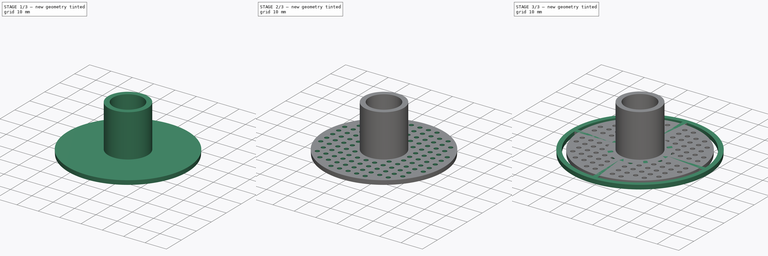
[diagram: build sequence overview — one tinted view per stage of 3, left to right]
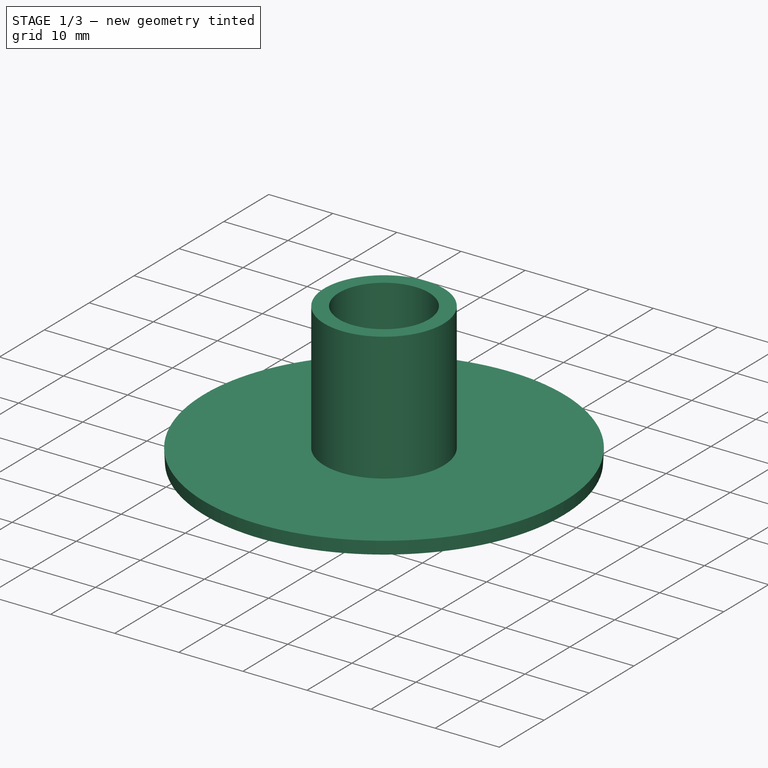
[diagram: stage 1 of 3 — iso view after this stage's code; geometry added in this stage tinted green]
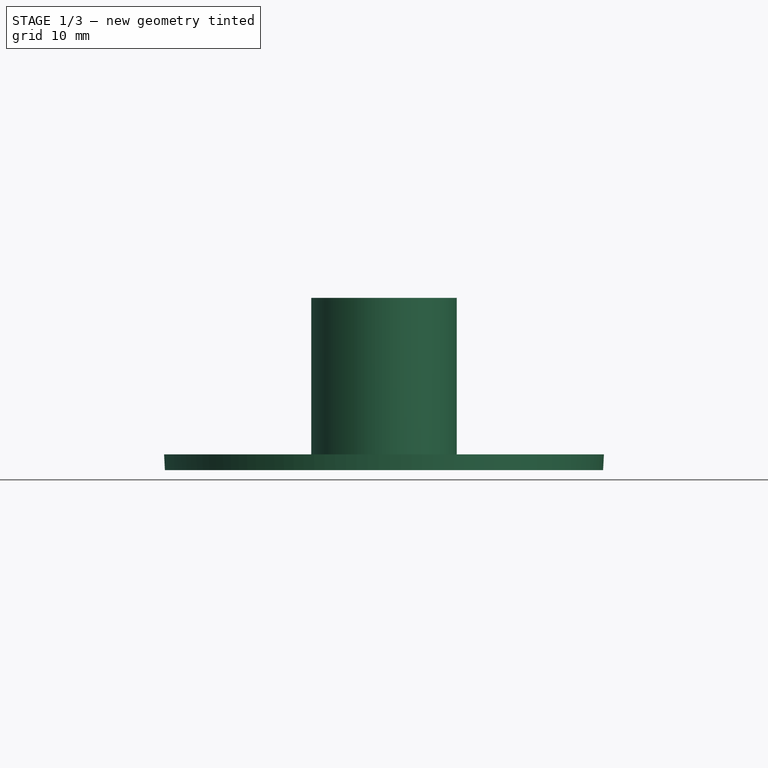
[diagram: stage 1 of 3 — front view after this stage's code; geometry added in this stage tinted green]
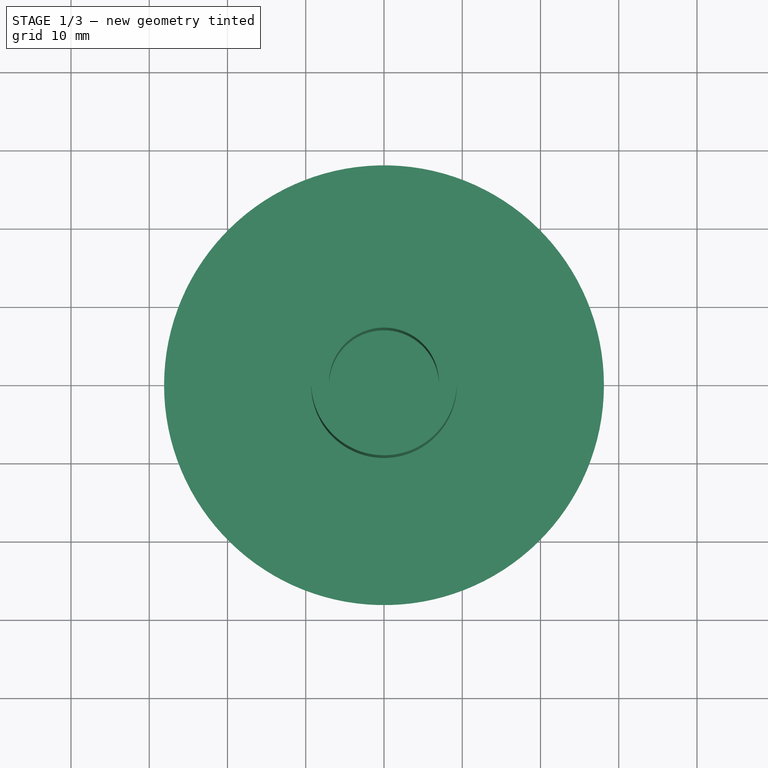
[diagram: stage 1 of 3 — top view after this stage's code; geometry added in this stage tinted green]
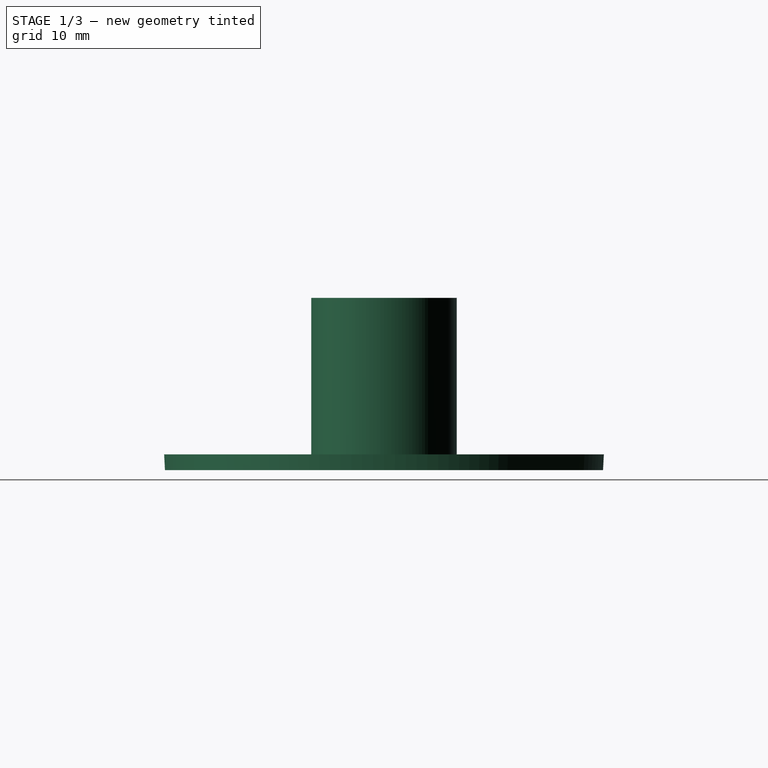
[diagram: stage 1 of 3 — right view after this stage's code; geometry added in this stage tinted green]
FCSTD DOCUMENT  (FreeCAD 1.0R)
Label: morozoff-bottom-filter_type-a
License: All rights reserved
LicenseURL: https://en.wikipedia.org/wiki/All_rights_reserved
objects: Sketcher::SketchObject×8, PartDesign::Pocket×5, PartDesign::Pad×3, PartDesign::Body×2, Spreadsheet::Sheet×1
note: 42 computed .brp shape members not serialized (recipe doc carries the construction recipe); baked Part::Feature solids carry a one-line shape summary decoded from their .brp

FEATURE [Spreadsheet::Sheet] Spreadsheet
  cells = A1='名前; B1='値; A2='thin; B2(thin)=2; A3='sunoko_phi; B3(sunoko_phi)=56; A4='pipe_phi; B4(pipe_phi)=18.6; A5='pipe_len; B5(pipe_len)=20; A6='pipe_phi_soto; B6(pipe_phi_soto)=21; A7='pipe_osae; B7(pipe_osae)=63.5; A8='pipe_osae_frame; B8(pipe_osae_frame)=2; A9='hole; B9(hole)=2
FEATURE [Sketcher::SketchObject] Sketch
  ArcFitTolerance = 1e-06
  AttachmentSupport = -> [XY_Plane]
  FullyConstrained = true
  MakeInternals = false
  MapMode = 5
  expr: Constraints[1] = Spreadsheet.sunoko_phi
  sketch-geometry (1):
    g0: Circle CenterX=0 CenterY=0 CenterZ=0 NormalX=0 NormalY=0 NormalZ=1 AngleXU=0 Radius=28
  constraints (2):
    c: Coincident(g0,g-1)
    c: Diameter(g0) = 56
FEATURE [PartDesign::Pad] Pad
  Direction = (0,0,1)
  Length = 2
  Length2 = 10
  Profile = -> Sketch
  ReferenceAxis = -> Sketch [N_Axis]
  Refine = true
  Suppressed = false
  TaperAngle = 3
  Type = 0
  expr: Length = Spreadsheet.thin
FEATURE [Sketcher::SketchObject] Sketch001
  ArcFitTolerance = 1e-06
  AttachmentSupport = -> [Pad]
  FullyConstrained = true
  MakeInternals = false
  MapMode = 5
  Placement = pos=(0,0,2) rot=(0,0,1;0rad)
  expr: Constraints[1] = Spreadsheet.pipe_phi
  sketch-geometry (1):
    g0: Circle CenterX=0 CenterY=0 CenterZ=0 NormalX=0 NormalY=0 NormalZ=1 AngleXU=0 Radius=9.3
  constraints (2):
    c: Coincident(g0,g-1)
    c: Diameter(g0) = 18.6
FEATURE [PartDesign::Pad] Pad001
  BaseFeature = -> Pad
  Direction = (0,0,1)
  Length = 20
  Length2 = 10
  Profile = -> Sketch001
  ReferenceAxis = -> Sketch001 [N_Axis]
  Refine = true
  Suppressed = false
  Type = 0
  expr: Length = Spreadsheet.pipe_len
FEATURE [Sketcher::SketchObject] Sketch002
  ArcFitTolerance = 1e-06
  AttachmentSupport = -> [Pad001]
  FullyConstrained = true
  MakeInternals = false
  MapMode = 5
  Placement = pos=(0,0,22) rot=(0,0,1;0rad)
  expr: Constraints[1] = Spreadsheet.thin
  sketch-geometry (1):
    g0: Circle CenterX=0 CenterY=0 CenterZ=0 NormalX=0 NormalY=0 NormalZ=1 AngleXU=0 Radius=7.02073
  constraints (2):
    c: Coincident(g0,g-1)
    c: Distance(g0,g-3) = 2
FEATURE [PartDesign::Pocket] Pocket
  BaseFeature = -> Pad001
  Direction = (0,0,-1)
  Length = 20
  Length2 = 5
  Profile = -> Sketch002
  ReferenceAxis = -> Sketch002 [N_Axis]
  Refine = true
  Suppressed = false
  Type = 0
  expr: Length = Spreadsheet.pipe_len
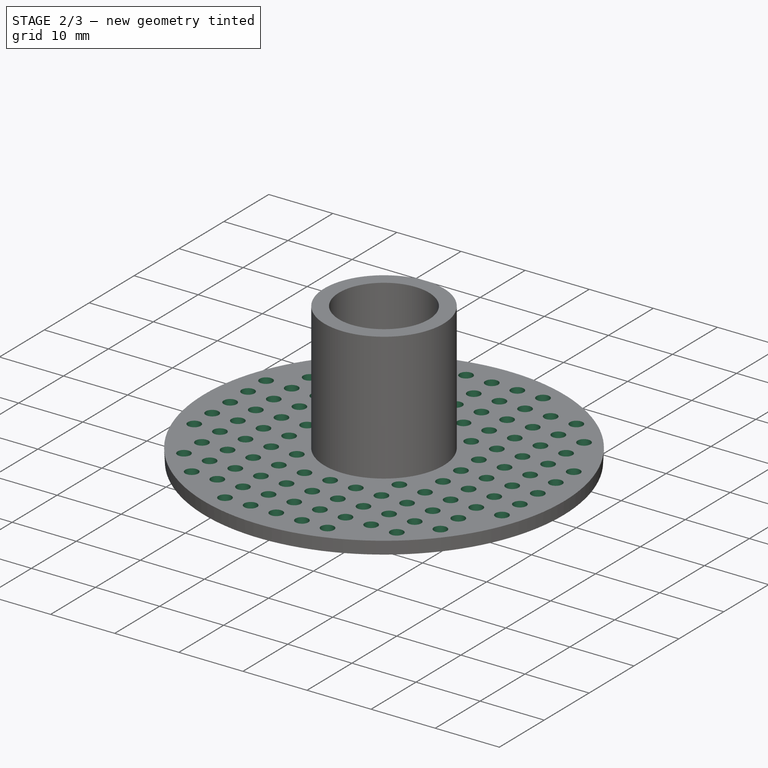
[diagram: stage 2 of 3 — iso view after this stage's code; geometry added in this stage tinted green]
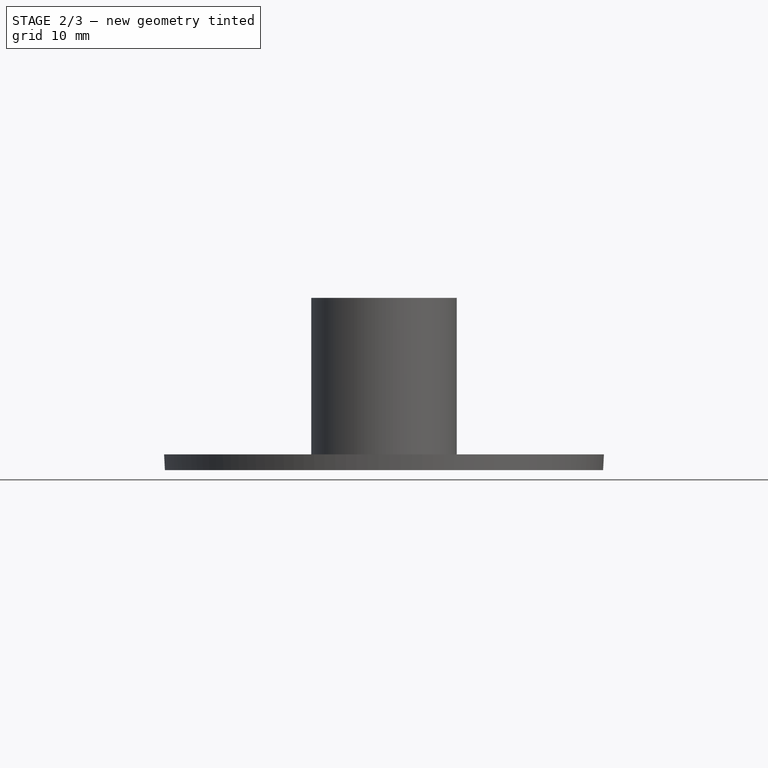
[diagram: stage 2 of 3 — front view after this stage's code; geometry added in this stage tinted green]
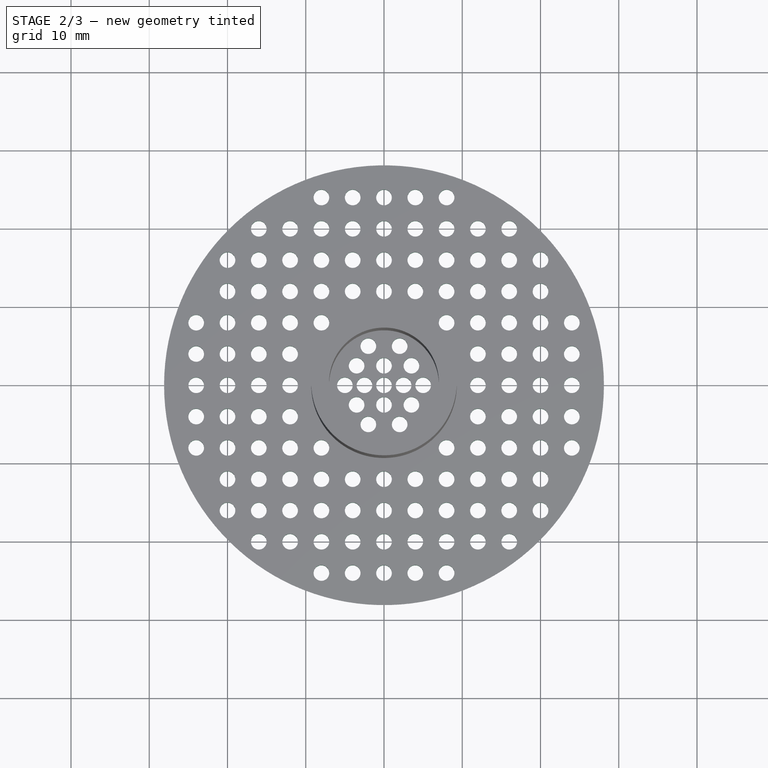
[diagram: stage 2 of 3 — top view after this stage's code; geometry added in this stage tinted green]
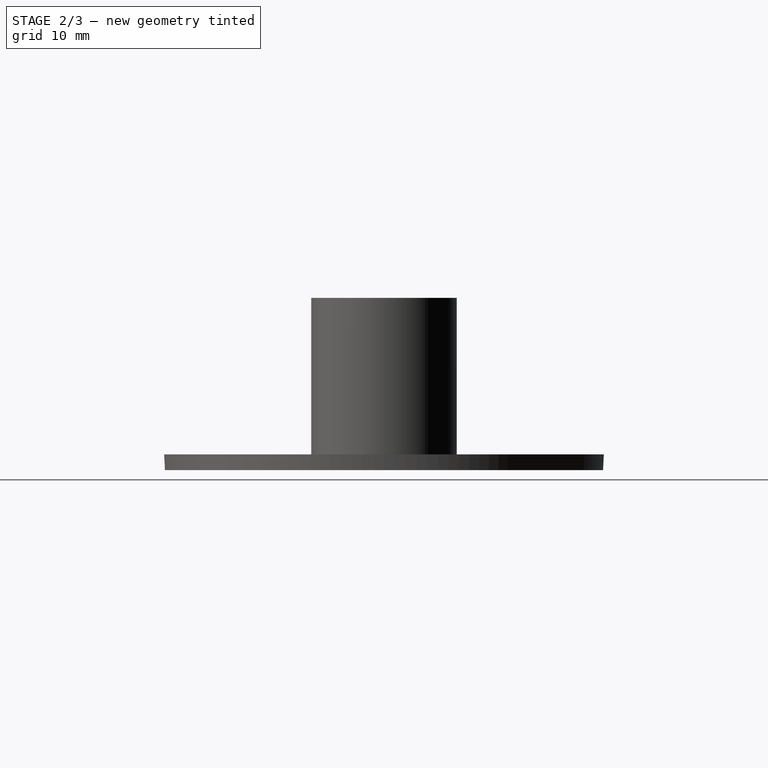
[diagram: stage 2 of 3 — right view after this stage's code; geometry added in this stage tinted green]
FEATURE [PartDesign::Body] Body001  label="Pipe_osae"
  AllowCompound = false
  Group = -> [Sketch003,Pad002,Sketch004,Pocket001,Sketch005,Pocket002]
  Origin = -> Origin001
  Tip = -> Pocket002
FEATURE [Sketcher::SketchObject] Sketch006
  ArcFitTolerance = 1e-06
  AttachmentSupport = -> [Pocket]
  FullyConstrained = true
  MakeInternals = false
  MapMode = 5
  Placement = pos=(0,0,2) rot=(0,0,1;0rad)
  sketch-geometry (140):
    g0: LineSegment [constr] StartX=20 StartY=40 StartZ=0 EndX=20 EndY=-40 EndZ=0
    g1: LineSegment [constr] StartX=12 StartY=40 StartZ=0 EndX=12 EndY=-40 EndZ=0
    g2: LineSegment [constr] StartX=16 StartY=40 StartZ=0 EndX=16 EndY=-40 EndZ=0
    g3: LineSegment [constr] StartX=-16 StartY=40 StartZ=0 EndX=-16 EndY=-40 EndZ=0
    g4: LineSegment [constr] StartX=24 StartY=40 StartZ=0 EndX=24 EndY=-40 EndZ=0
    g5: LineSegment [constr] StartX=-8 StartY=40 StartZ=0 EndX=-8 EndY=-40 EndZ=0
    g6: LineSegment [constr] StartX=-4 StartY=40 StartZ=0 EndX=-4 EndY=-40 EndZ=0
    g7: LineSegment [constr] StartX=-12 StartY=40 StartZ=0 EndX=-12 EndY=-40 EndZ=0
    g8: LineSegment [constr] StartX=-20 StartY=40 StartZ=0 EndX=-20 EndY=-40 EndZ=0
    g9: LineSegment [constr] StartX=-24 StartY=40 StartZ=0 EndX=-24 EndY=-40 EndZ=0
    g10: LineSegment [constr] StartX=4 StartY=40 StartZ=0 EndX=4 EndY=-40 EndZ=0
    g11: LineSegment [constr] StartX=8 StartY=40 StartZ=0 EndX=8 EndY=-40 EndZ=0
    g12: LineSegment [constr] StartX=-40 StartY=24 StartZ=0 EndX=40 EndY=24 EndZ=0
    g13: LineSegment [constr] StartX=-40 StartY=20 StartZ=0 EndX=40 EndY=20 EndZ=0
    g14: LineSegment [constr] StartX=-40 StartY=16 StartZ=0 EndX=40 EndY=16 EndZ=0
    g15: LineSegment [constr] StartX=-40 StartY=12 StartZ=0 EndX=40 EndY=12 EndZ=0
    g16: LineSegment [constr] StartX=-40 StartY=8 StartZ=0 EndX=40 EndY=8 EndZ=0
    g17: LineSegment [constr] StartX=-40 StartY=4 StartZ=0 EndX=40 EndY=4 EndZ=0
    g18: LineSegment [constr] StartX=-40 StartY=-8 StartZ=0 EndX=40 EndY=-8 EndZ=0
    g19: LineSegment [constr] StartX=-40 StartY=-12 StartZ=0 EndX=40 EndY=-12 EndZ=0
    g20: LineSegment [constr] StartX=-40 StartY=-16 StartZ=0 EndX=40 EndY=-16 EndZ=0
    g21: LineSegment [constr] StartX=-40 StartY=-20 StartZ=0 EndX=40 EndY=-20 EndZ=0
    g22: LineSegment [constr] StartX=-40 StartY=-24 StartZ=0 EndX=40 EndY=-24 EndZ=0
    g23: LineSegment [constr] StartX=-40 StartY=-4 StartZ=0 EndX=40 EndY=-4 EndZ=0
    g24: Circle CenterX=0 CenterY=-24 CenterZ=0 NormalX=0 NormalY=0 NormalZ=1 AngleXU=0 Radius=1
    g25: Circle CenterX=4 CenterY=-24 CenterZ=0 NormalX=0 NormalY=0 NormalZ=1 AngleXU=0 Radius=1
    g26: Circle CenterX=-4 CenterY=-24 CenterZ=0 NormalX=0 NormalY=0 NormalZ=1 AngleXU=0 Radius=1
    g27: Circle CenterX=-8 CenterY=-24 CenterZ=0 NormalX=0 NormalY=0 NormalZ=1 AngleXU=0 Radius=1
    g28: Circle CenterX=8 CenterY=-24 CenterZ=0 NormalX=0 NormalY=0 NormalZ=1 AngleXU=0 Radius=1
    g29: Circle CenterX=-16 CenterY=-20 CenterZ=0 NormalX=0 NormalY=0 NormalZ=1 AngleXU=0 Radius=1
    g30: Circle CenterX=-12 CenterY=-20 CenterZ=0 NormalX=0 NormalY=0 NormalZ=1 AngleXU=0 Radius=1
    g31: Circle CenterX=-8 CenterY=-20 CenterZ=0 NormalX=0 NormalY=0 NormalZ=1 AngleXU=0 Radius=1
    g32: Circle CenterX=-4 CenterY=-20 CenterZ=0 NormalX=0 NormalY=0 NormalZ=1 AngleXU=0 Radius=1
    g33: Circle CenterX=0 CenterY=-20 CenterZ=0 NormalX=0 NormalY=0 NormalZ=1 AngleXU=0 Radius=1
    g34: Circle CenterX=4 CenterY=-20 CenterZ=0 NormalX=0 NormalY=0 NormalZ=1 AngleXU=0 Radius=1
    g35: Circle CenterX=8 CenterY=-20 CenterZ=0 NormalX=0 NormalY=0 NormalZ=1 AngleXU=0 Radius=1
    g36: Circle CenterX=12 CenterY=-20 CenterZ=0 NormalX=0 NormalY=0 NormalZ=1 AngleXU=0 Radius=1
    g37: Circle CenterX=16 CenterY=-20 CenterZ=0 NormalX=0 NormalY=0 NormalZ=1 AngleXU=0 Radius=1
    g38: Circle CenterX=-20 CenterY=-16 CenterZ=0 NormalX=0 NormalY=0 NormalZ=1 AngleXU=0 Radius=1
    g39: Circle CenterX=-16 CenterY=-16 CenterZ=0 NormalX=0 NormalY=0 NormalZ=1 AngleXU=0 Radius=1
    g40: Circle CenterX=-12 CenterY=-16 CenterZ=0 NormalX=0 NormalY=0 NormalZ=1 AngleXU=0 Radius=1
    g41: Circle CenterX=-8 CenterY=-16 CenterZ=0 NormalX=0 NormalY=0 NormalZ=1 AngleXU=0 Radius=1
    g42: Circle CenterX=-4 CenterY=-16 CenterZ=0 NormalX=0 NormalY=0 NormalZ=1 AngleXU=0 Radius=1
    g43: Circle CenterX=0 CenterY=-16 CenterZ=0 NormalX=0 NormalY=0 NormalZ=1 AngleXU=0 Radius=1
    g44: Circle CenterX=4 CenterY=-16 CenterZ=0 NormalX=0 NormalY=0 NormalZ=1 AngleXU=0 Radius=1
    g45: Circle CenterX=8 CenterY=-16 CenterZ=0 NormalX=0 NormalY=0 NormalZ=1 AngleXU=0 Radius=1
    g46: Circle CenterX=12 CenterY=-16 CenterZ=0 NormalX=0 NormalY=0 NormalZ=1 AngleXU=0 Radius=1
    g47: Circle CenterX=16 CenterY=-16 CenterZ=0 NormalX=0 NormalY=0 NormalZ=1 AngleXU=0 Radius=1
    g48: Circle CenterX=20 CenterY=-16 CenterZ=0 NormalX=0 NormalY=0 NormalZ=1 AngleXU=0 Radius=1
    g49: Circle CenterX=-20 CenterY=-12 CenterZ=0 NormalX=0 NormalY=0 NormalZ=1 AngleXU=0 Radius=1
    g50: Circle CenterX=-16 CenterY=-12 CenterZ=0 NormalX=0 NormalY=0 NormalZ=1 AngleXU=0 Radius=1
    g51: Circle CenterX=-12 CenterY=-12 CenterZ=0 NormalX=0 NormalY=0 NormalZ=1 AngleXU=0 Radius=1
    g52: Circle CenterX=-8 CenterY=-12 CenterZ=0 NormalX=0 NormalY=0 NormalZ=1 AngleXU=0 Radius=1
    g53: Circle CenterX=-4 CenterY=-12 CenterZ=0 NormalX=0 NormalY=0 NormalZ=1 AngleXU=0 Radius=1
    g54: Circle CenterX=0 CenterY=-12 CenterZ=0 NormalX=0 NormalY=0 NormalZ=1 AngleXU=0 Radius=1
    g55: Circle CenterX=4 CenterY=-12 CenterZ=0 NormalX=0 NormalY=0 NormalZ=1 AngleXU=0 Radius=1
    g56: Circle CenterX=8 CenterY=-12 CenterZ=0 NormalX=0 NormalY=0 NormalZ=1 AngleXU=0 Radius=1
    g57: Circle CenterX=12 CenterY=-12 CenterZ=0 NormalX=0 NormalY=0 NormalZ=1 AngleXU=0 Radius=1
    g58: Circle CenterX=16 CenterY=-12 CenterZ=0 NormalX=0 NormalY=0 NormalZ=1 AngleXU=0 Radius=1
    g59: Circle CenterX=20 CenterY=-12 CenterZ=0 NormalX=0 NormalY=0 NormalZ=1 AngleXU=0 Radius=1
    g60: Circle CenterX=-24 CenterY=-8 CenterZ=0 NormalX=0 NormalY=0 NormalZ=1 AngleXU=0 Radius=1
    g61: Circle CenterX=-20 CenterY=-8 CenterZ=0 NormalX=0 NormalY=0 NormalZ=1 AngleXU=0 Radius=1
    g62: Circle CenterX=-16 CenterY=-8 CenterZ=0 NormalX=0 NormalY=0 NormalZ=1 AngleXU=0 Radius=1
    g63: Circle CenterX=-12 CenterY=-8 CenterZ=0 NormalX=0 NormalY=0 NormalZ=1 AngleXU=0 Radius=1
    g64: Circle CenterX=-8 CenterY=-8 CenterZ=0 NormalX=0 NormalY=0 NormalZ=1 AngleXU=0 Radius=1
    g65: Circle CenterX=8 CenterY=-8 CenterZ=0 NormalX=0 NormalY=0 NormalZ=1 AngleXU=0 Radius=1
    g66: Circle CenterX=12 CenterY=-8 CenterZ=0 NormalX=0 NormalY=0 NormalZ=1 AngleXU=0 Radius=1
    g67: Circle CenterX=16 CenterY=-8 CenterZ=0 NormalX=0 NormalY=0 NormalZ=1 AngleXU=0 Radius=1
    g68: Circle CenterX=20 CenterY=-8 CenterZ=0 NormalX=0 NormalY=0 NormalZ=1 AngleXU=0 Radius=1
    g69: Circle CenterX=24 CenterY=-8 CenterZ=0 NormalX=0 NormalY=0 NormalZ=1 AngleXU=0 Radius=1
    g70: Circle CenterX=-24 CenterY=-4 CenterZ=0 NormalX=0 NormalY=0 NormalZ=1 AngleXU=0 Radius=1
    g71: Circle CenterX=-20 CenterY=-4 CenterZ=0 NormalX=0 NormalY=0 NormalZ=1 AngleXU=0 Radius=1
    g72: Circle CenterX=-16 CenterY=-4 CenterZ=0 NormalX=0 NormalY=0 NormalZ=1 AngleXU=0 Radius=1
    g73: Circle CenterX=-12 CenterY=-4 CenterZ=0 NormalX=0 NormalY=0 NormalZ=1 AngleXU=0 Radius=1
    g74: Circle CenterX=12 CenterY=-4 CenterZ=0 NormalX=0 NormalY=0 NormalZ=1 AngleXU=0 Radius=1
    g75: Circle CenterX=16 CenterY=-4 CenterZ=0 NormalX=0 NormalY=0 NormalZ=1 AngleXU=0 Radius=1
    g76: Circle CenterX=20 CenterY=-4 CenterZ=0 NormalX=0 NormalY=0 NormalZ=1 AngleXU=0 Radius=1
    g77: Circle CenterX=24 CenterY=-4 CenterZ=0 NormalX=0 NormalY=0 NormalZ=1 AngleXU=0 Radius=1
    g78: Circle CenterX=-24 CenterY=0 CenterZ=0 NormalX=0 NormalY=0 NormalZ=1 AngleXU=0 Radius=1
    g79: Circle CenterX=-20 CenterY=0 CenterZ=0 NormalX=0 NormalY=0 NormalZ=1 AngleXU=0 Radius=1
    g80: Circle CenterX=-16 CenterY=0 CenterZ=0 NormalX=0 NormalY=0 NormalZ=1 AngleXU=0 Radius=1
    g81: Circle CenterX=-12 CenterY=0 CenterZ=0 NormalX=0 NormalY=0 NormalZ=1 AngleXU=0 Radius=1
    g82: Circle CenterX=12 CenterY=0 CenterZ=0 NormalX=0 NormalY=0 NormalZ=1 AngleXU=0 Radius=1
    g83: Circle CenterX=16 CenterY=0 CenterZ=0 NormalX=0 NormalY=0 NormalZ=1 AngleXU=0 Radius=1
    g84: Circle CenterX=20 CenterY=0 CenterZ=0 NormalX=0 NormalY=0 NormalZ=1 AngleXU=0 Radius=1
    g85: Circle CenterX=24 CenterY=0 CenterZ=0 NormalX=0 NormalY=0 NormalZ=1 AngleXU=0 Radius=1
    g86: Circle CenterX=-24 CenterY=4 CenterZ=0 NormalX=0 NormalY=0 NormalZ=1 AngleXU=0 Radius=1
    g87: Circle CenterX=-20 CenterY=4 CenterZ=0 NormalX=0 NormalY=0 NormalZ=1 AngleXU=0 Radius=1
    g88: Circle CenterX=-16 CenterY=4 CenterZ=0 NormalX=0 NormalY=0 NormalZ=1 AngleXU=0 Radius=1
    g89: Circle CenterX=-12 CenterY=4 CenterZ=0 NormalX=0 NormalY=0 NormalZ=1 AngleXU=0 Radius=1
    g90: Circle CenterX=12 CenterY=4 CenterZ=0 NormalX=0 NormalY=0 NormalZ=1 AngleXU=0 Radius=1
    g91: Circle CenterX=16 CenterY=4 CenterZ=0 NormalX=0 NormalY=0 NormalZ=1 AngleXU=0 Radius=1
    g92: Circle CenterX=20 CenterY=4 CenterZ=0 NormalX=0 NormalY=0 NormalZ=1 AngleXU=0 Radius=1
    g93: Circle CenterX=24 CenterY=4 CenterZ=0 NormalX=0 NormalY=0 NormalZ=1 AngleXU=0 Radius=1
    g94: Circle CenterX=-24 CenterY=8 CenterZ=0 NormalX=0 NormalY=0 NormalZ=1 AngleXU=0 Radius=1
    g95: Circle CenterX=-20 CenterY=8 CenterZ=0 NormalX=0 NormalY=0 NormalZ=1 AngleXU=0 Radius=1
    g96: Circle CenterX=-16 CenterY=8 CenterZ=0 NormalX=0 NormalY=0 NormalZ=1 AngleXU=0 Radius=1
    g97: Circle CenterX=-12 CenterY=8 CenterZ=0 NormalX=0 NormalY=0 NormalZ=1 AngleXU=0 Radius=1
    g98: Circle CenterX=-8 CenterY=8 CenterZ=0 NormalX=0 NormalY=0 NormalZ=1 AngleXU=0 Radius=1
    g99: Circle CenterX=8 CenterY=8 CenterZ=0 NormalX=0 NormalY=0 NormalZ=1 AngleXU=0 Radius=1
    g100: Circle CenterX=12 CenterY=8 CenterZ=0 NormalX=0 NormalY=0 NormalZ=1 AngleXU=0 Radius=1
    g101: Circle CenterX=16 CenterY=8 CenterZ=0 NormalX=0 NormalY=0 NormalZ=1 AngleXU=0 Radius=1
    g102: Circle CenterX=20 CenterY=8 CenterZ=0 NormalX=0 NormalY=0 NormalZ=1 AngleXU=0 Radius=1
    g103: Circle CenterX=24 CenterY=8 CenterZ=0 NormalX=0 NormalY=0 NormalZ=1 AngleXU=0 Radius=1
    g104: Circle CenterX=-20 CenterY=12 CenterZ=0 NormalX=0 NormalY=0 NormalZ=1 AngleXU=0 Radius=1
    g105: Circle CenterX=-16 CenterY=12 CenterZ=0 NormalX=0 NormalY=0 NormalZ=1 AngleXU=0 Radius=1
    g106: Circle CenterX=-12 CenterY=12 CenterZ=0 NormalX=0 NormalY=0 NormalZ=1 AngleXU=0 Radius=1
    g107: Circle CenterX=-8 CenterY=12 CenterZ=0 NormalX=0 NormalY=0 NormalZ=1 AngleXU=0 Radius=1
    g108: Circle CenterX=-4 CenterY=12 CenterZ=0 NormalX=0 NormalY=0 NormalZ=1 AngleXU=0 Radius=1
    g109: Circle CenterX=0 CenterY=12 CenterZ=0 NormalX=0 NormalY=0 NormalZ=1 AngleXU=0 Radius=1
    g110: Circle CenterX=4 CenterY=12 CenterZ=0 NormalX=0 NormalY=0 NormalZ=1 AngleXU=0 Radius=1
    g111: Circle CenterX=8 CenterY=12 CenterZ=0 NormalX=0 NormalY=0 NormalZ=1 AngleXU=0 Radius=1
    g112: Circle CenterX=12 CenterY=12 CenterZ=0 NormalX=0 NormalY=0 NormalZ=1 AngleXU=0 Radius=1
    g113: Circle CenterX=16 CenterY=12 CenterZ=0 NormalX=0 NormalY=0 NormalZ=1 AngleXU=0 Radius=1
    g114: Circle CenterX=20 CenterY=12 CenterZ=0 NormalX=0 NormalY=0 NormalZ=1 AngleXU=0 Radius=1
    g115: Circle CenterX=-16 CenterY=16 CenterZ=0 NormalX=0 NormalY=0 NormalZ=1 AngleXU=0 Radius=1
    g116: Circle CenterX=-12 CenterY=16 CenterZ=0 NormalX=0 NormalY=0 NormalZ=1 AngleXU=0 Radius=1
    g117: Circle CenterX=-8 CenterY=16 CenterZ=0 NormalX=0 NormalY=0 NormalZ=1 AngleXU=0 Radius=1
    g118: Circle CenterX=-4 CenterY=16 CenterZ=0 NormalX=0 NormalY=0 NormalZ=1 AngleXU=0 Radius=1
    g119: Circle CenterX=0 CenterY=16 CenterZ=0 NormalX=0 NormalY=0 NormalZ=1 AngleXU=0 Radius=1
    g120: Circle CenterX=4 CenterY=16 CenterZ=0 NormalX=0 NormalY=0 NormalZ=1 AngleXU=0 Radius=1
    g121: Circle CenterX=8 CenterY=16 CenterZ=0 NormalX=0 NormalY=0 NormalZ=1 AngleXU=0 Radius=1
    g122: Circle CenterX=12 CenterY=16 CenterZ=0 NormalX=0 NormalY=0 NormalZ=1 AngleXU=0 Radius=1
    g123: Circle CenterX=16 CenterY=16 CenterZ=0 NormalX=0 NormalY=0 NormalZ=1 AngleXU=0 Radius=1
    g124: Circle CenterX=-20 CenterY=16 CenterZ=0 NormalX=0 NormalY=0 NormalZ=1 AngleXU=0 Radius=1
    g125: Circle CenterX=20 CenterY=16 CenterZ=0 NormalX=0 NormalY=0 NormalZ=1 AngleXU=0 Radius=1
    g126: Circle CenterX=16 CenterY=20 CenterZ=0 NormalX=0 NormalY=0 NormalZ=1 AngleXU=0 Radius=1
    g127: Circle CenterX=12 CenterY=20 CenterZ=0 NormalX=0 NormalY=0 NormalZ=1 AngleXU=0 Radius=1
    g128: Circle CenterX=8 CenterY=20 CenterZ=0 NormalX=0 NormalY=0 NormalZ=1 AngleXU=0 Radius=1
    g129: Circle CenterX=4 CenterY=20 CenterZ=0 NormalX=0 NormalY=0 NormalZ=1 AngleXU=0 Radius=1
    g130: Circle CenterX=0 CenterY=20 CenterZ=0 NormalX=0 NormalY=0 NormalZ=1 AngleXU=0 Radius=1
    g131: Circle CenterX=-4 CenterY=20 CenterZ=0 NormalX=0 NormalY=0 NormalZ=1 AngleXU=0 Radius=1
    g132: Circle CenterX=-8 CenterY=20 CenterZ=0 NormalX=0 NormalY=0 NormalZ=1 AngleXU=0 Radius=1
    g133: Circle CenterX=-12 CenterY=20 CenterZ=0 NormalX=0 NormalY=0 NormalZ=1 AngleXU=0 Radius=1
    g134: Circle CenterX=-16 CenterY=20 CenterZ=0 NormalX=0 NormalY=0 NormalZ=1 AngleXU=0 Radius=1
    g135: Circle CenterX=-8 CenterY=24 CenterZ=0 NormalX=0 NormalY=0 NormalZ=1 AngleXU=0 Radius=1
    g136: Circle CenterX=-4 CenterY=24 CenterZ=0 NormalX=0 NormalY=0 NormalZ=1 AngleXU=0 Radius=1
    g137: Circle CenterX=0 CenterY=24 CenterZ=0 NormalX=0 NormalY=0 NormalZ=1 AngleXU=0 Radius=1
    g138: Circle CenterX=4 CenterY=24 CenterZ=0 NormalX=0 NormalY=0 NormalZ=1 AngleXU=0 Radius=1
    g139: Circle CenterX=8 CenterY=24 CenterZ=0 NormalX=0 NormalY=0 NormalZ=1 AngleXU=0 Radius=1
  constraints (444):
    c: Vertical(g0)
    c: DistanceY(g0,g0) = 80
    c: DistanceY(g0,g-1) = 40
    c: Vertical(g1)
    c: DistanceY(g1,g1) = 80
    c: DistanceY(g1,g-1) = 40
    c: DistanceX(g-1,g1) = 12
    c: Vertical(g2)
    c: DistanceY(g2,g2) = 80
    c: DistanceY(g2,g-1) = 40
    c: DistanceX(g-1,g2) = 16
    c: DistanceX(g-1,g0) = 20
    c: Vertical(g3)
    c: DistanceY(g3,g3) = 80
    c: DistanceY(g3,g-1) = 40
    c: Vertical(g4)
    c: DistanceY(g4,g4) = 80
    c: DistanceY(g4,g-1) = 40
    c: DistanceX(g-1,g4) = 24
    c: Vertical(g5)
    c: DistanceY(g5,g5) = 80
    c: DistanceY(g5,g-1) = 40
    c: Vertical(g6)
    c: DistanceY(g6,g6) = 80
    c: DistanceY(g6,g-1) = 40
    c: Vertical(g7)
    c: DistanceY(g7,g7) = 80
    c: DistanceY(g7,g-1) = 40
    c: DistanceX(g6,g-1) = 4
    c: DistanceX(g5,g6) = 4
    c: DistanceX(g7,g5) = 4
    c: DistanceX(g3,g7) = 4
    c: Vertical(g8)
    c: DistanceY(g8,g8) = 80
    c: DistanceY(g8,g-1) = 40
    c: Vertical(g9)
    c: DistanceY(g9,g9) = 80
    c: DistanceY(g9,g-1) = 40
    c: DistanceX(g8,g3) = 4
    c: DistanceX(g9,g8) = 4
    c: Vertical(g10)
    c: DistanceY(g10,g10) = 80
    c: DistanceY(g10,g-1) = 40
    c: Vertical(g11)
    c: DistanceY(g11,g11) = 80
    c: DistanceY(g11,g-1) = 40
    c: DistanceX(g-1,g10) = 4
    c: DistanceX(g-1,g11) = 8
    c: Horizontal(g12)
    c: DistanceX(g12,g12) = 80
    c: DistanceX(g-1,g12) = 40
    c: Horizontal(g13)
    c: DistanceX(g13,g13) = 80
    c: DistanceX(g-1,g13) = 40
    c: Horizontal(g14)
    c: DistanceX(g14,g14) = 80
    c: DistanceX(g-1,g14) = 40
    c: Horizontal(g15)
    c: DistanceX(g15,g15) = 80
    c: DistanceX(g-1,g15) = 40
    c: Horizontal(g16)
    c: DistanceX(g16,g16) = 80
    c: DistanceX(g-1,g16) = 40
    c: Horizontal(g17)
    c: DistanceX(g17,g17) = 80
    c: DistanceX(g-1,g17) = 40
    c: Horizontal(g18)
    c: DistanceX(g18,g18) = 80
    c: DistanceX(g-1,g18) = 40
    c: Horizontal(g19)
    c: DistanceX(g19,g19) = 80
    c: DistanceX(g-1,g19) = 40
    c: Horizontal(g20)
    c: DistanceX(g20,g20) = 80
    c: DistanceX(g-1,g20) = 40
    c: Horizontal(g21)
    c: DistanceX(g21,g21) = 80
    c: DistanceX(g-1,g21) = 40
    c: Horizontal(g22)
    c: DistanceX(g22,g22) = 80
    c: DistanceX(g-1,g22) = 40
    c: Horizontal(g23)
    c: DistanceX(g23,g23) = 80
    c: DistanceX(g-1,g23) = 40
    c: DistanceY(g-1,g17) = 4
    c: DistanceY(g17,g16) = 4
    c: DistanceY(g16,g15) = 4
    c: DistanceY(g15,g14) = 4
    c: DistanceY(g14,g13) = 4
    c: DistanceY(g13,g12) = 4
    c: DistanceY(g23,g-1) = 4
    c: DistanceY(g18,g23) = 4
    c: DistanceY(g19,g18) = 4
    c: DistanceY(g20,g19) = 4
    c: DistanceY(g21,g20) = 4
    c: DistanceY(g22,g21) = 4
    c: Diameter(g24) = 2
    c: PointOnObject(g24,g22)
    c: PointOnObject(g24,g-2)
    c: Diameter(g25) = 2
    c: PointOnObject(g25,g10)
    c: PointOnObject(g25,g22)
    c: Diameter(g26) = 2
    c: Diameter(g27) = 2
    c: Diameter(g28) = 2
    c: Diameter(g29) = 2
    c: Diameter(g30) = 2
    c: Diameter(g31) = 2
    c: Diameter(g32) = 2
    c: Diameter(g33) = 2
    c: Diameter(g34) = 2
    c: Diameter(g35) = 2
    c: Diameter(g36) = 2
    c: Diameter(g37) = 2
    c: PointOnObject(g27,g5)
    c: PointOnObject(g27,g22)
    c: PointOnObject(g26,g6)
    c: PointOnObject(g26,g22)
    c: PointOnObject(g28,g11)
    c: PointOnObject(g28,g22)
    c: PointOnObject(g29,g3)
    c: PointOnObject(g29,g21)
    c: PointOnObject(g30,g7)
    c: PointOnObject(g30,g21)
    c: PointOnObject(g31,g5)
    c: PointOnObject(g31,g21)
    c: PointOnObject(g32,g6)
    c: PointOnObject(g32,g21)
    c: PointOnObject(g33,g-2)
    c: PointOnObject(g33,g21)
    c: PointOnObject(g34,g10)
    c: PointOnObject(g34,g21)
    c: PointOnObject(g35,g11)
    c: PointOnObject(g35,g21)
    c: PointOnObject(g36,g1)
    c: PointOnObject(g36,g21)
    c: PointOnObject(g37,g2)
    c: PointOnObject(g37,g21)
    c: Diameter(g38) = 2
    c: Diameter(g39) = 2
    c: Diameter(g40) = 2
    c: Diameter(g41) = 2
    c: Diameter(g42) = 2
    c: Diameter(g43) = 2
    c: Diameter(g44) = 2
    c: Diameter(g45) = 2
    c: Diameter(g46) = 2
    c: Diameter(g47) = 2
    c: Diameter(g48) = 2
    c: Diameter(g49) = 2
    c: Diameter(g50) = 2
    c: Diameter(g51) = 2
    c: Diameter(g52) = 2
    c: Diameter(g53) = 2
    c: Diameter(g54) = 2
    c: Diameter(g55) = 2
    c: Diameter(g56) = 2
    c: Diameter(g57) = 2
    c: Diameter(g58) = 2
    c: Diameter(g59) = 2
    c: PointOnObject(g38,g8)
    c: PointOnObject(g38,g20)
    c: PointOnObject(g39,g20)
    c: PointOnObject(g39,g3)
    c: PointOnObject(g40,g7)
    c: PointOnObject(g40,g20)
    c: PointOnObject(g41,g5)
    c: PointOnObject(g41,g20)
    c: PointOnObject(g42,g6)
    c: PointOnObject(g42,g20)
    c: PointOnObject(g43,g-2)
    c: PointOnObject(g43,g20)
    c: PointOnObject(g44,g10)
    c: PointOnObject(g44,g20)
    c: PointOnObject(g45,g11)
    c: PointOnObject(g45,g20)
    c: PointOnObject(g46,g1)
    c: PointOnObject(g46,g20)
    c: PointOnObject(g47,g2)
    c: PointOnObject(g47,g20)
    c: PointOnObject(g48,g0)
    c: PointOnObject(g48,g20)
    c: PointOnObject(g59,g0)
    c: PointOnObject(g59,g19)
    c: PointOnObject(g58,g2)
    c: PointOnObject(g58,g19)
    c: PointOnObject(g57,g1)
    c: PointOnObject(g57,g19)
    c: PointOnObject(g56,g11)
    c: PointOnObject(g56,g19)
    c: PointOnObject(g55,g10)
    c: PointOnObject(g55,g19)
    c: PointOnObject(g54,g19)
    c: PointOnObject(g54,g-2)
    c: PointOnObject(g53,g6)
    c: PointOnObject(g53,g19)
    c: PointOnObject(g52,g5)
    c: PointOnObject(g52,g19)
    c: PointOnObject(g51,g19)
    c: PointOnObject(g51,g7)
    c: PointOnObject(g50,g19)
    c: PointOnObject(g50,g3)
    c: PointOnObject(g49,g8)
    c: PointOnObject(g49,g19)
    c: Diameter(g60) = 2
    c: Diameter(g61) = 2
    c: Diameter(g62) = 2
    c: Diameter(g63) = 2
    c: Diameter(g64) = 2
    c: Diameter(g65) = 2
    c: Diameter(g66) = 2
    c: Diameter(g67) = 2
    c: Diameter(g68) = 2
    c: Diameter(g69) = 2
    c: Diameter(g70) = 2
    c: Diameter(g71) = 2
    c: Diameter(g72) = 2
    c: Diameter(g73) = 2
    c: Diameter(g74) = 2
    c: Diameter(g75) = 2
    c: Diameter(g76) = 2
    c: Diameter(g77) = 2
    c: Diameter(g78) = 2
    c: Diameter(g79) = 2
    c: Diameter(g80) = 2
    c: Diameter(g81) = 2
    c: Diameter(g82) = 2
    c: Diameter(g83) = 2
    c: Diameter(g84) = 2
    c: Diameter(g85) = 2
    c: PointOnObject(g60,g9)
    c: PointOnObject(g60,g18)
    c: PointOnObject(g61,g8)
    c: PointOnObject(g61,g18)
    c: PointOnObject(g62,g3)
    c: PointOnObject(g62,g18)
    c: PointOnObject(g63,g7)
    c: PointOnObject(g63,g18)
    c: PointOnObject(g64,g5)
    c: PointOnObject(g64,g18)
    c: PointOnObject(g65,g11)
    c: PointOnObject(g65,g18)
    c: PointOnObject(g66,g1)
    c: PointOnObject(g66,g18)
    c: PointOnObject(g67,g2)
    c: PointOnObject(g67,g18)
    c: PointOnObject(g68,g18)
    c: PointOnObject(g68,g0)
    c: PointOnObject(g69,g4)
    c: PointOnObject(g69,g18)
    c: PointOnObject(g77,g4)
    c: PointOnObject(g77,g23)
    c: PointOnObject(g76,g0)
    c: PointOnObject(g76,g23)
    c: PointOnObject(g75,g2)
    c: PointOnObject(g75,g23)
    c: PointOnObject(g74,g1)
    c: PointOnObject(g74,g23)
    c: PointOnObject(g73,g7)
    c: PointOnObject(g73,g23)
    c: PointOnObject(g72,g3)
    c: PointOnObject(g72,g23)
    c: PointOnObject(g71,g8)
    c: PointOnObject(g71,g23)
    c: PointOnObject(g70,g9)
    c: PointOnObject(g70,g23)
    c: PointOnObject(g78,g9)
    c: PointOnObject(g78,g-1)
    c: PointOnObject(g79,g8)
    c: PointOnObject(g79,g-1)
    c: PointOnObject(g80,g3)
    c: PointOnObject(g80,g-1)
    c: PointOnObject(g81,g7)
    c: PointOnObject(g81,g-1)
    c: PointOnObject(g82,g1)
    c: PointOnObject(g82,g-1)
    c: PointOnObject(g83,g2)
    c: PointOnObject(g83,g-1)
    c: PointOnObject(g84,g0)
    c: PointOnObject(g84,g-1)
    c: PointOnObject(g85,g4)
    c: PointOnObject(g85,g-1)
    c: Diameter(g86) = 2
    c: Diameter(g87) = 2
    c: Diameter(g88) = 2
    c: Diameter(g89) = 2
    c: Diameter(g90) = 2
    c: Diameter(g91) = 2
    c: Diameter(g92) = 2
    c: Diameter(g93) = 2
    c: Diameter(g94) = 2
    c: Diameter(g95) = 2
    c: Diameter(g96) = 2
    c: Diameter(g97) = 2
    c: Diameter(g98) = 2
    c: Diameter(g99) = 2
    c: Diameter(g100) = 2
    c: Diameter(g101) = 2
    c: Diameter(g102) = 2
    c: Diameter(g103) = 2
    c: Diameter(g104) = 2
    c: Diameter(g105) = 2
    c: Diameter(g106) = 2
    c: Diameter(g107) = 2
    c: Diameter(g108) = 2
    c: Diameter(g109) = 2
    c: Diameter(g110) = 2
    c: Diameter(g111) = 2
    c: Diameter(g112) = 2
    c: Diameter(g113) = 2
    c: Diameter(g114) = 2
    c: Diameter(g115) = 2
    c: Diameter(g116) = 2
    c: Diameter(g117) = 2
    c: Diameter(g118) = 2
    c: Diameter(g119) = 2
    c: Diameter(g120) = 2
    c: Diameter(g121) = 2
    c: Diameter(g122) = 2
    c: Diameter(g123) = 2
    c: PointOnObject(g86,g9)
    c: PointOnObject(g86,g17)
    c: PointOnObject(g87,g8)
    c: PointOnObject(g87,g17)
    c: PointOnObject(g88,g3)
    c: PointOnObject(g88,g17)
    c: PointOnObject(g89,g7)
    c: PointOnObject(g89,g17)
    c: PointOnObject(g90,g1)
    c: PointOnObject(g90,g17)
    c: PointOnObject(g91,g2)
    c: PointOnObject(g91,g17)
    c: PointOnObject(g92,g0)
    c: PointOnObject(g92,g17)
    c: PointOnObject(g93,g4)
    c: PointOnObject(g93,g17)
    c: PointOnObject(g103,g4)
    c: PointOnObject(g103,g16)
    c: PointOnObject(g102,g0)
    c: PointOnObject(g102,g16)
    c: PointOnObject(g101,g2)
    c: PointOnObject(g101,g16)
    c: PointOnObject(g100,g1)
    c: PointOnObject(g100,g16)
    c: PointOnObject(g99,g11)
    c: PointOnObject(g99,g16)
    c: PointOnObject(g98,g5)
    c: PointOnObject(g98,g16)
    c: PointOnObject(g97,g7)
    c: PointOnObject(g97,g16)
    c: PointOnObject(g96,g3)
    c: PointOnObject(g96,g16)
    c: PointOnObject(g95,g8)
    c: PointOnObject(g95,g16)
    c: PointOnObject(g94,g9)
    c: PointOnObject(g94,g16)
    c: PointOnObject(g104,g8)
    c: PointOnObject(g104,g15)
    c: PointOnObject(g105,g3)
    c: PointOnObject(g105,g15)
    c: PointOnObject(g106,g7)
    c: PointOnObject(g106,g15)
    c: PointOnObject(g107,g5)
    c: PointOnObject(g107,g15)
    c: PointOnObject(g108,g6)
    c: PointOnObject(g108,g15)
    c: PointOnObject(g109,g-2)
    c: PointOnObject(g109,g15)
    c: PointOnObject(g110,g10)
    c: PointOnObject(g110,g15)
    c: PointOnObject(g111,g11)
    c: PointOnObject(g111,g15)
    c: PointOnObject(g112,g1)
    c: PointOnObject(g112,g15)
    c: PointOnObject(g113,g2)
    c: PointOnObject(g113,g15)
    c: PointOnObject(g114,g0)
    c: PointOnObject(g114,g15)
    c: PointOnObject(g115,g3)
    c: PointOnObject(g115,g14)
    c: PointOnObject(g116,g7)
    c: PointOnObject(g116,g14)
    c: PointOnObject(g117,g5)
    c: PointOnObject(g117,g14)
    c: PointOnObject(g118,g6)
    c: PointOnObject(g118,g14)
    c: PointOnObject(g119,g-2)
    c: PointOnObject(g119,g14)
    c: PointOnObject(g120,g10)
    c: PointOnObject(g120,g14)
    c: PointOnObject(g121,g11)
    c: PointOnObject(g121,g14)
    c: PointOnObject(g122,g1)
    c: PointOnObject(g122,g14)
    c: PointOnObject(g123,g2)
    c: PointOnObject(g123,g14)
    c: Diameter(g124) = 2
    c: PointOnObject(g124,g8)
    c: PointOnObject(g124,g14)
    c: Diameter(g125) = 2
    c: PointOnObject(g125,g0)
    c: PointOnObject(g125,g14)
    c: Diameter(g126) = 2
    c: Diameter(g127) = 2
    c: Diameter(g128) = 2
    c: Diameter(g129) = 2
    c: Diameter(g130) = 2
    c: Diameter(g131) = 2
    c: Diameter(g132) = 2
    c: Diameter(g133) = 2
    c: Diameter(g134) = 2
    c: Diameter(g135) = 2
    c: Diameter(g136) = 2
    c: Diameter(g137) = 2
    c: Diameter(g138) = 2
    c: Diameter(g139) = 2
    c: PointOnObject(g134,g3)
    c: PointOnObject(g134,g13)
    c: PointOnObject(g133,g7)
    c: PointOnObject(g133,g13)
    c: PointOnObject(g132,g5)
    c: PointOnObject(g132,g13)
    c: PointOnObject(g131,g6)
    c: PointOnObject(g131,g13)
    c: PointOnObject(g130,g-2)
    c: PointOnObject(g130,g13)
    c: PointOnObject(g129,g10)
    c: PointOnObject(g129,g13)
    c: PointOnObject(g128,g11)
    c: PointOnObject(g128,g13)
    c: PointOnObject(g127,g1)
    c: PointOnObject(g127,g13)
    c: PointOnObject(g126,g2)
    c: PointOnObject(g126,g13)
    c: PointOnObject(g135,g5)
    c: PointOnObject(g135,g12)
    c: PointOnObject(g136,g6)
    c: PointOnObject(g136,g12)
    c: PointOnObject(g137,g-2)
    c: PointOnObject(g137,g12)
    c: PointOnObject(g138,g10)
    c: PointOnObject(g138,g12)
    c: PointOnObject(g139,g11)
    c: PointOnObject(g139,g12)
FEATURE [PartDesign::Pocket] Pocket003
  BaseFeature = -> Pocket
  Direction = (0,0,-1)
  Length = 5
  Length2 = 5
  Profile = -> Sketch006
  ReferenceAxis = -> Sketch006 [N_Axis]
  Refine = true
  Suppressed = false
  Type = 1
FEATURE [Sketcher::SketchObject] Sketch007
  ArcFitTolerance = 1e-06
  AttachmentSupport = -> [Pocket003]
  ExternalGeometry = -> [Pocket003]
  FullyConstrained = true
  MakeInternals = false
  MapMode = 5
  Placement = pos=(0,0,2) rot=(0,0,1;0rad)
  expr: Constraints[0] = Spreadsheet.hole
  sketch-geometry (15):
    g0: Circle CenterX=0 CenterY=0 CenterZ=0 NormalX=0 NormalY=0 NormalZ=1 AngleXU=0 Radius=1
    g1: Circle CenterX=-5 CenterY=0 CenterZ=0 NormalX=0 NormalY=0 NormalZ=1 AngleXU=0 Radius=1
    g2: Circle CenterX=-2.5 CenterY=0 CenterZ=0 NormalX=0 NormalY=0 NormalZ=1 AngleXU=0 Radius=1
    g3: Circle CenterX=2.5 CenterY=0 CenterZ=0 NormalX=0 NormalY=0 NormalZ=1 AngleXU=0 Radius=1
    g4: Circle CenterX=5 CenterY=0 CenterZ=0 NormalX=0 NormalY=0 NormalZ=1 AngleXU=0 Radius=1
    g5: Circle CenterX=-3.5 CenterY=2.5 CenterZ=0 NormalX=0 NormalY=0 NormalZ=1 AngleXU=0 Radius=1
    g6: Circle CenterX=0 CenterY=2.5 CenterZ=0 NormalX=0 NormalY=0 NormalZ=1 AngleXU=0 Radius=1
    g7: Circle CenterX=3.5 CenterY=2.5 CenterZ=0 NormalX=0 NormalY=0 NormalZ=1 AngleXU=0 Radius=1
    g8: Circle CenterX=-2 CenterY=5 CenterZ=0 NormalX=0 NormalY=0 NormalZ=1 AngleXU=0 Radius=1
    g9: Circle CenterX=2 CenterY=5 CenterZ=0 NormalX=0 NormalY=0 NormalZ=1 AngleXU=0 Radius=1
    g10: Circle CenterX=-3.5 CenterY=-2.5 CenterZ=0 NormalX=0 NormalY=0 NormalZ=1 AngleXU=0 Radius=1
    g11: Circle CenterX=0 CenterY=-2.5 CenterZ=0 NormalX=0 NormalY=0 NormalZ=1 AngleXU=0 Radius=1
    g12: Circle CenterX=3.5 CenterY=-2.5 CenterZ=0 NormalX=0 NormalY=0 NormalZ=1 AngleXU=0 Radius=1
    g13: Circle CenterX=-2 CenterY=-5 CenterZ=0 NormalX=0 NormalY=0 NormalZ=1 AngleXU=0 Radius=1
    g14: Circle CenterX=2 CenterY=-5 CenterZ=0 NormalX=0 NormalY=0 NormalZ=1 AngleXU=0 Radius=1
  constraints (44):
    c: Diameter(g0) = 2
    c: Diameter(g1) = 2
    c: Diameter(g2) = 2
    c: Diameter(g3) = 2
    c: Diameter(g4) = 2
    c: Diameter(g5) = 2
    c: Diameter(g6) = 2
    c: Diameter(g7) = 2
    c: Diameter(g8) = 2
    c: Diameter(g9) = 2
    c: Diameter(g10) = 2
    c: Diameter(g11) = 2
    c: Diameter(g12) = 2
    c: Diameter(g13) = 2
    c: Diameter(g14) = 2
    c: Coincident(g0,g-1)
    c: PointOnObject(g3,g-1)
    c: PointOnObject(g4,g-1)
    c: PointOnObject(g2,g-1)
    c: PointOnObject(g1,g-1)
    c: DistanceX(g2,g0) = 2.5
    c: DistanceX(g1,g2) = 2.5
    c: DistanceX(g0,g3) = 2.5
    c: DistanceX(g3,g4) = 2.5
    c: PointOnObject(g6,g-2)
    c: DistanceY(g0,g6) = 2.5
    c: DistanceY(g0,g5) = 2.5
    c: DistanceY(g0,g7) = 2.5
    c: DistanceX(g5,g6) = 3.5
    c: DistanceX(g6,g7) = 3.5
    c: DistanceY(g0,g8) = 5
    c: DistanceY(g0,g9) = 5
    c: DistanceX(g8,g0) = 2
    c: DistanceX(g0,g9) = 2
    c: PointOnObject(g11,g-2)
    c: DistanceY(g11,g0) = 2.5
    c: DistanceY(g10,g0) = 2.5
    c: DistanceY(g12,g0) = 2.5
    c: DistanceX(g10,g0) = 3.5
    c: DistanceX(g0,g12) = 3.5
    c: DistanceX(g0,g14) = 2
    c: DistanceX(g13,g0) = 2
    c: DistanceY(g13,g0) = 5
    c: DistanceY(g14,g0) = 5
FEATURE [PartDesign::Pocket] Pocket004
  BaseFeature = -> Pocket003
  Direction = (0,0,-1)
  Length = 5
  Length2 = 5
  Profile = -> Sketch007
  ReferenceAxis = -> Sketch007 [N_Axis]
  Refine = true
  Suppressed = false
  Type = 1
FEATURE [PartDesign::Body] Body
  AllowCompound = false
  Group = -> [Sketch,Pad,Sketch001,Pad001,Sketch002,Pocket,Sketch006,Pocket003,Sketch007,Pocket004]
  Origin = -> Origin
  Tip = -> Pocket004
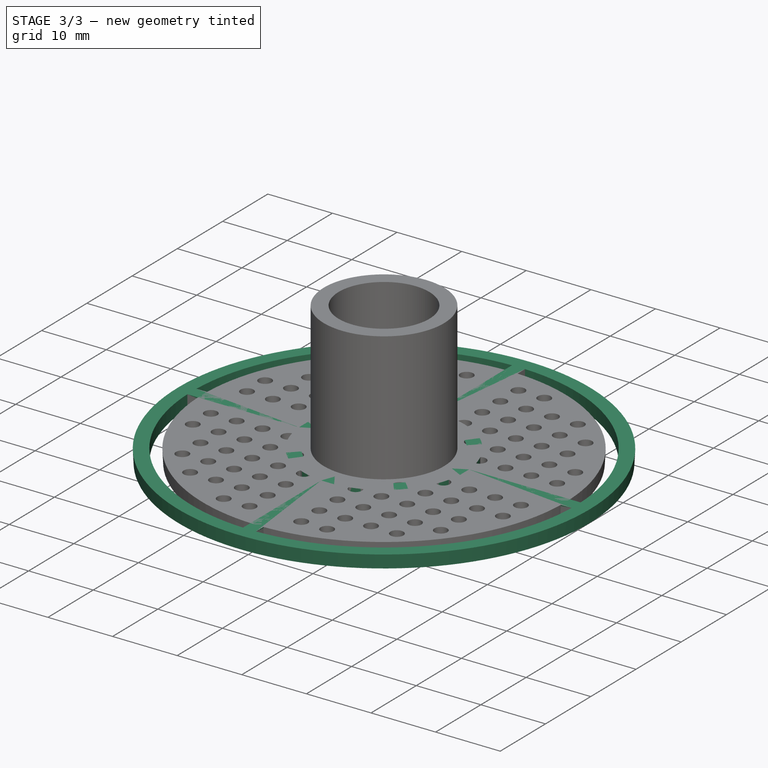
[diagram: stage 3 of 3 — iso view after this stage's code; geometry added in this stage tinted green]
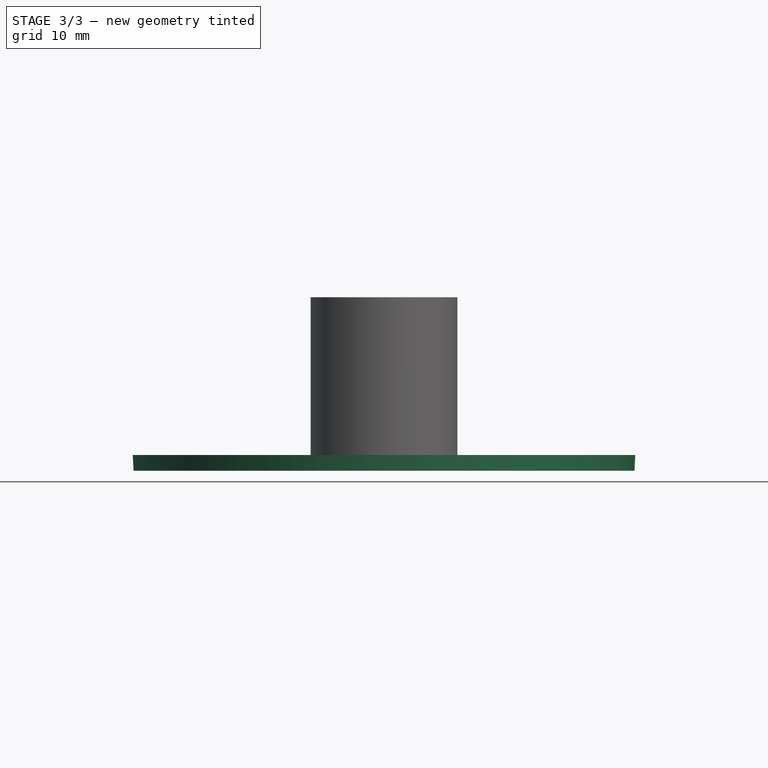
[diagram: stage 3 of 3 — front view after this stage's code; geometry added in this stage tinted green]
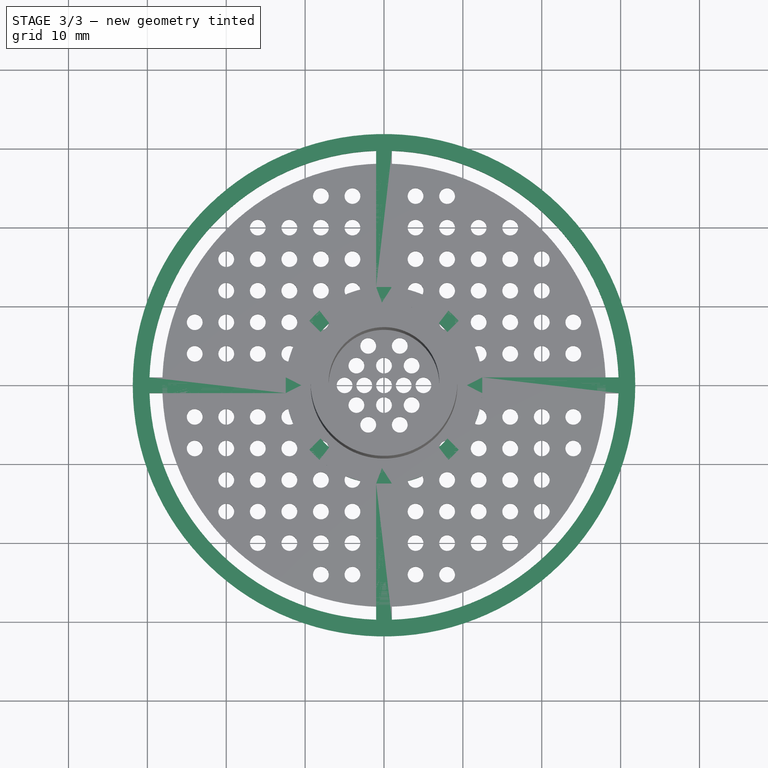
[diagram: stage 3 of 3 — top view after this stage's code; geometry added in this stage tinted green]
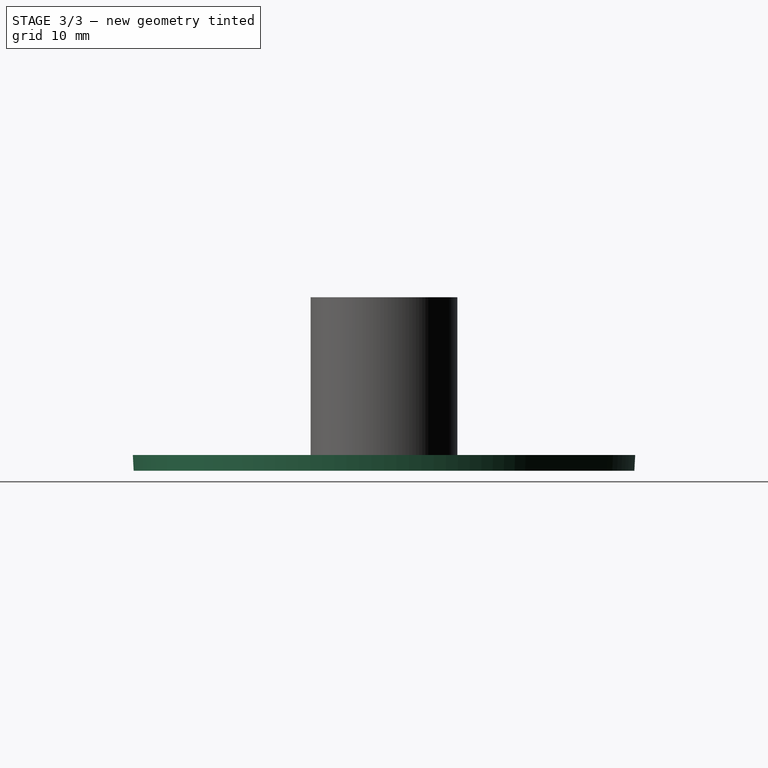
[diagram: stage 3 of 3 — right view after this stage's code; geometry added in this stage tinted green]
FEATURE [Sketcher::SketchObject] Sketch003
  ArcFitTolerance = 1e-06
  AttachmentSupport = -> [XY_Plane001]
  FullyConstrained = true
  MakeInternals = false
  MapMode = 5
  expr: Constraints[1] = Spreadsheet.pipe_osae
  sketch-geometry (1):
    g0: Circle CenterX=0 CenterY=0 CenterZ=0 NormalX=0 NormalY=0 NormalZ=1 AngleXU=0 Radius=31.75
  constraints (2):
    c: Coincident(g0,g-1)
    c: Diameter(g0) = 63.5
FEATURE [PartDesign::Pad] Pad002
  Direction = (0,0,1)
  Length = 2
  Length2 = 10
  Profile = -> Sketch003
  ReferenceAxis = -> Sketch003 [N_Axis]
  Refine = true
  Suppressed = false
  TaperAngle = 3
  Type = 0
  expr: Length = Spreadsheet.thin
FEATURE [Sketcher::SketchObject] Sketch004
  ArcFitTolerance = 1e-06
  AttachmentSupport = -> [Pad002]
  FullyConstrained = true
  MakeInternals = false
  MapMode = 5
  Placement = pos=(0,0,2) rot=(0,0,1;0rad)
  expr: Constraints[1] = Spreadsheet.pipe_phi_soto
  sketch-geometry (1):
    g0: Circle CenterX=0 CenterY=0 CenterZ=0 NormalX=0 NormalY=0 NormalZ=1 AngleXU=0 Radius=10.5
  constraints (2):
    c: Coincident(g0,g-1)
    c: Diameter(g0) = 21
FEATURE [PartDesign::Pocket] Pocket001
  BaseFeature = -> Pad002
  Direction = (0,0,-1)
  Length = 5
  Length2 = 5
  Profile = -> Sketch004
  ReferenceAxis = -> Sketch004 [N_Axis]
  Refine = true
  Suppressed = false
  Type = 1
FEATURE [Sketcher::SketchObject] Sketch005
  ArcFitTolerance = 1e-06
  AttachmentSupport = -> [Pocket001]
  ExternalGeometry = -> [Pocket001]
  FullyConstrained = true
  MakeInternals = false
  MapMode = 5
  Placement = pos=(0,0,2) rot=(0,0,1;0rad)
  expr: Constraints[11] = Spreadsheet.pipe_osae - Spreadsheet.pipe_osae_frame * 2
  expr: Constraints[27] = Spreadsheet.pipe_osae_frame / 2
  expr: Constraints[2] = Spreadsheet.pipe_osae
  expr: Constraints[31] = Spreadsheet.pipe_osae_frame / 2
  expr: Constraints[3] = Spreadsheet.pipe_osae_frame / 2
  expr: Constraints[4] = Spreadsheet.pipe_osae / 2
  expr: Constraints[5] = Spreadsheet.pipe_osae
  expr: Constraints[6] = Spreadsheet.pipe_osae_frame / 2
  expr: Constraints[7] = Spreadsheet.pipe_osae / 2
  expr: Constraints[9] = Spreadsheet.pipe_phi_soto + Spreadsheet.pipe_osae_frame * 2
  sketch-geometry (23):
    g0: LineSegment [constr] StartX=-31.75 StartY=1 StartZ=0 EndX=31.75 EndY=1 EndZ=0
    g1: LineSegment [constr] StartX=1 StartY=31.75 StartZ=0 EndX=1 EndY=-31.75 EndZ=0
    g2: Circle [constr] CenterX=0 CenterY=0 CenterZ=0 NormalX=0 NormalY=0 NormalZ=1 AngleXU=0 Radius=12.5
    g3: Circle [constr] CenterX=0 CenterY=0 CenterZ=0 NormalX=0 NormalY=0 NormalZ=1 AngleXU=0 Radius=29.75
    g4: ArcOfCircle CenterX=0 CenterY=0 CenterZ=0 NormalX=0 NormalY=0 NormalZ=1 AngleXU=0 Radius=12.5 StartAngle=0.0800856 EndAngle=1.49071
    g5: ArcOfCircle CenterX=0 CenterY=0 CenterZ=0 NormalX=0 NormalY=0 NormalZ=1 AngleXU=0 Radius=29.75 StartAngle=0.0336198 EndAngle=1.53718
    g6: LineSegment StartX=1 StartY=12.4599 StartZ=0 EndX=1 EndY=29.7332 EndZ=0
    g7: LineSegment StartX=12.4599 StartY=1 StartZ=0 EndX=29.7332 EndY=1 EndZ=0
    g8: LineSegment [constr] StartX=-1 StartY=31.8391 StartZ=0 EndX=-1 EndY=-31.8391 EndZ=0
    g9: LineSegment [constr] StartX=-31.8391 StartY=-1 StartZ=0 EndX=31.8391 EndY=-1 EndZ=0
    g10: ArcOfCircle CenterX=0 CenterY=0 CenterZ=0 NormalX=0 NormalY=0 NormalZ=1 AngleXU=0 Radius=12.5 StartAngle=4.79247 EndAngle=6.2031
    g11: ArcOfCircle CenterX=0 CenterY=0 CenterZ=0 NormalX=0 NormalY=0 NormalZ=1 AngleXU=0 Radius=29.75 StartAngle=4.74601 EndAngle=6.24957
    g12: LineSegment StartX=1 StartY=-12.4599 StartZ=0 EndX=1 EndY=-29.7332 EndZ=0
    g13: LineSegment StartX=12.4599 StartY=-1 StartZ=0 EndX=29.7332 EndY=-1 EndZ=0
    g14: ArcOfCircle CenterX=0 CenterY=0 CenterZ=0 NormalX=0 NormalY=0 NormalZ=1 AngleXU=0 Radius=12.5 StartAngle=1.65088 EndAngle=3.06151
    g15: ArcOfCircle CenterX=0 CenterY=0 CenterZ=0 NormalX=0 NormalY=0 NormalZ=1 AngleXU=0 Radius=29.75 StartAngle=1.60442 EndAngle=3.10797
    g16: LineSegment StartX=-1 StartY=12.4599 StartZ=0 EndX=-1 EndY=29.7332 EndZ=0
    g17: LineSegment StartX=-12.4599 StartY=1 StartZ=0 EndX=-29.7332 EndY=1 EndZ=0
    g18: Circle [constr] CenterX=0 CenterY=0 CenterZ=0 NormalX=0 NormalY=0 NormalZ=1 AngleXU=0 Radius=12.5
    g19: ArcOfCircle CenterX=0 CenterY=0 CenterZ=0 NormalX=0 NormalY=0 NormalZ=1 AngleXU=0 Radius=12.5 StartAngle=3.22168 EndAngle=4.6323
    g20: ArcOfCircle CenterX=0 CenterY=0 CenterZ=0 NormalX=0 NormalY=0 NormalZ=1 AngleXU=0 Radius=29.75 StartAngle=3.17521 EndAngle=4.67877
    g21: LineSegment StartX=-29.7332 StartY=-1 StartZ=0 EndX=-12.4599 EndY=-1 EndZ=0
    g22: LineSegment StartX=-1 StartY=-12.4599 StartZ=0 EndX=-1 EndY=-29.7332 EndZ=0
  constraints (70):
    c: Horizontal(g0)
    c: Vertical(g1)
    c: DistanceX(g0,g0) = 63.5
    c: DistanceY(g-1,g0) = 1
    c: DistanceX(g-1,g0) = 31.75
    c: DistanceY(g1,g1) = 63.5
    c: DistanceX(g-1,g1) = 1
    c: DistanceY(g-1,g1) = 31.75
    c: Coincident(g2,g-1)
    c: Diameter(g2) = 25
    c: Coincident(g3,g2)
    c: Diameter(g3) = 59.5
    c: Coincident(g4,g2)
    c: PointOnObject(g4,g2)
    c: PointOnObject(g4,g1)
    c: PointOnObject(g4,g0)
    c: Coincident(g5,g2)
    c: PointOnObject(g5,g3)
    c: PointOnObject(g5,g1)
    c: PointOnObject(g5,g0)
    c: Coincident(g6,g4)
    c: Coincident(g6,g5)
    c: Coincident(g7,g4)
    c: Coincident(g7,g5)
    c: PointOnObject(g8,g-3)
    c: PointOnObject(g8,g-3)
    c: Vertical(g8)
    c: DistanceX(g8,g-1) = 1
    c: PointOnObject(g9,g-3)
    c: PointOnObject(g9,g-3)
    c: Horizontal(g9)
    c: DistanceY(g9,g-1) = 1
    c: Coincident(g10,g2)
    c: PointOnObject(g10,g2)
    c: PointOnObject(g10,g1)
    c: PointOnObject(g10,g9)
    c: Coincident(g11,g2)
    c: PointOnObject(g11,g3)
    c: PointOnObject(g11,g9)
    c: PointOnObject(g11,g1)
    c: Coincident(g12,g10)
    c: Coincident(g12,g11)
    c: Coincident(g13,g10)
    c: Coincident(g13,g11)
    c: Coincident(g14,g2)
    c: PointOnObject(g14,g2)
    c: PointOnObject(g14,g8)
    c: Coincident(g15,g2)
    c: PointOnObject(g15,g3)
    c: PointOnObject(g15,g8)
    c: PointOnObject(g15,g0)
    c: PointOnObject(g14,g0)
    c: Coincident(g16,g14)
    c: Coincident(g16,g15)
    c: Coincident(g17,g14)
    c: Coincident(g17,g15)
    c: Coincident(g18,g2)
    c: Equal(g18,g2)
    c: Coincident(g19,g2)
    c: PointOnObject(g19,g18)
    c: PointOnObject(g19,g9)
    c: PointOnObject(g19,g8)
    c: Coincident(g20,g2)
    c: PointOnObject(g20,g3)
    c: PointOnObject(g20,g8)
    c: PointOnObject(g20,g9)
    c: Coincident(g21,g20)
    c: Coincident(g21,g19)
    c: Coincident(g22,g19)
    c: Coincident(g22,g20)
FEATURE [PartDesign::Pocket] Pocket002
  BaseFeature = -> Pocket001
  Direction = (0,0,-1)
  Length = 5
  Length2 = 5
  Profile = -> Sketch005
  ReferenceAxis = -> Sketch005 [N_Axis]
  Refine = true
  Suppressed = false
  Type = 0
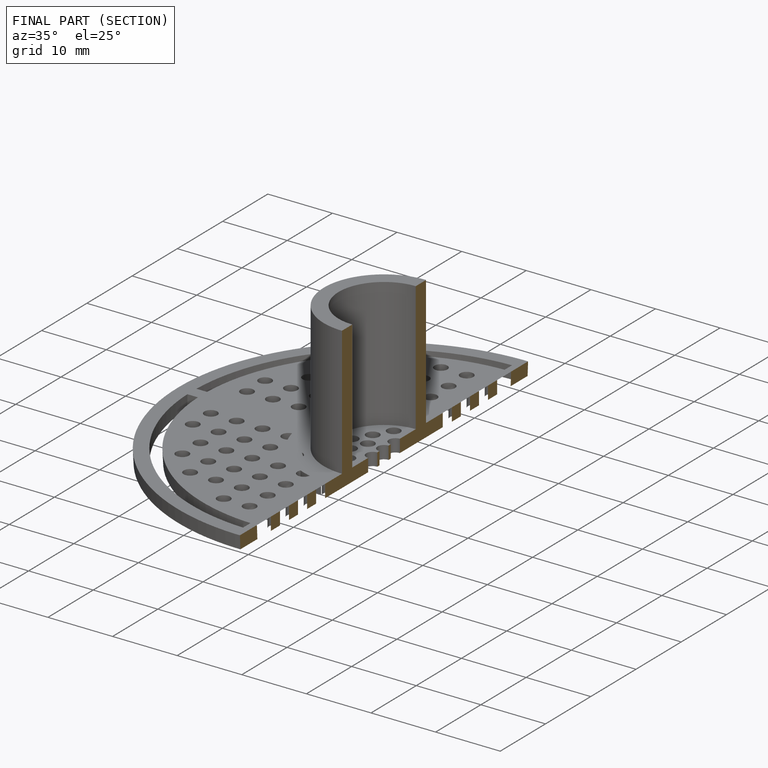
[diagram: finished part — half-section view (interior)]
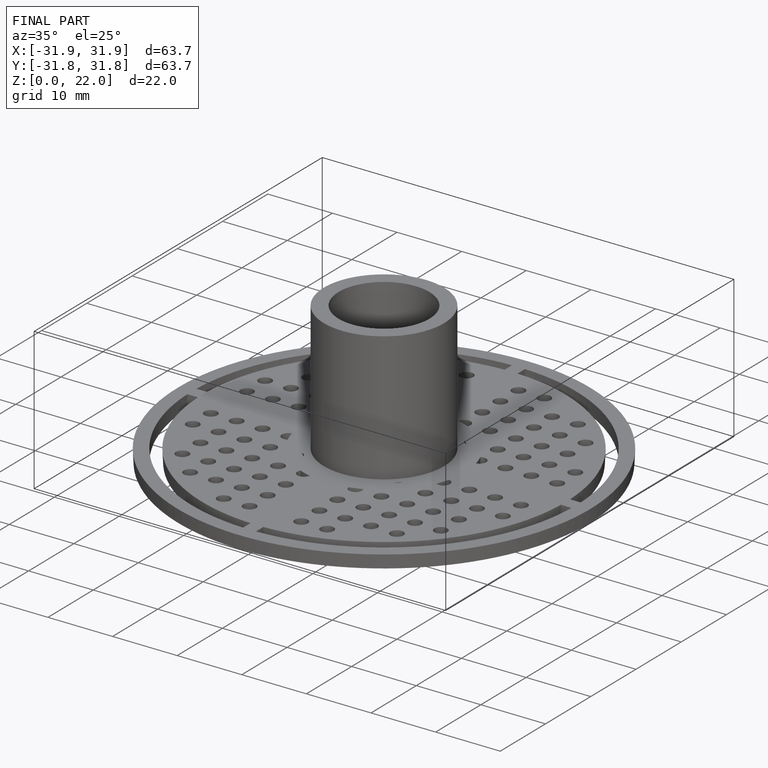
[diagram: finished part — iso view with bounding-box wireframe]
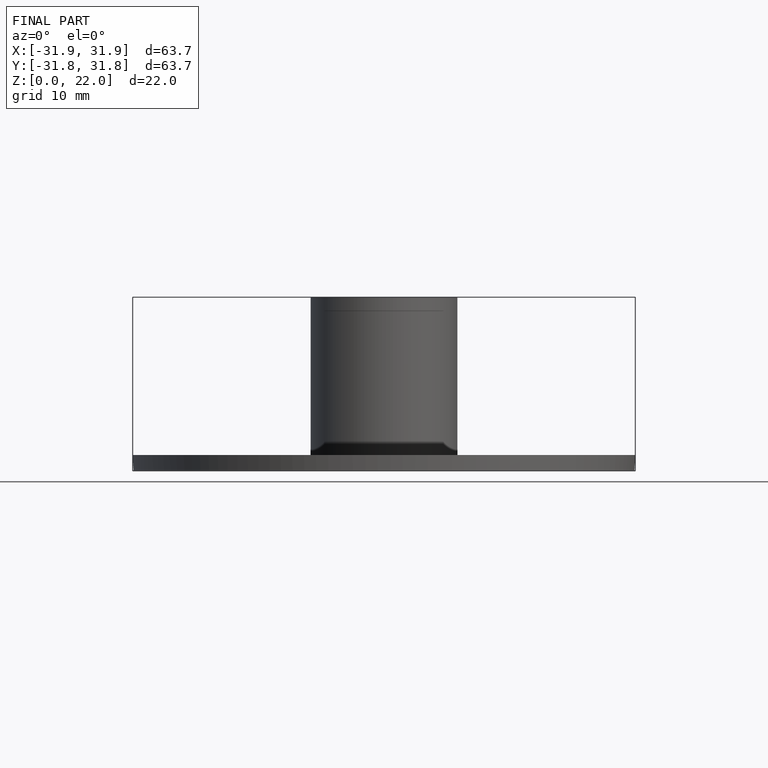
[diagram: finished part — front view with bounding-box wireframe]
